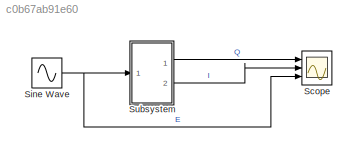
MODEL slx_c0b67ab91e60
KIND model
CONFIG AbsTol = auto
CONFIG EnableMultiTasking = off
CONFIG FixedStep = auto
CONFIG MaxStep = auto
CONFIG MinStep = auto
CONFIG RelTol = 1e-3
CONFIG SampleTimeConstraint = Unconstrained
CONFIG SolverName = VariableStepAuto
CONFIG StartTime = 0.0
CONFIG StopTime = 5
BLOCK [Scope] Scope
  Floating = off
  NumInputPorts = 3
  Ports = [3]
  ScopeSpecificationString = Simulink.scopes.TimeScopeBlockCfg('CurrentConfiguration', extmgr.ConfigurationSet(extmgr.Configuration('Core','General UI',true),extmgr.Configuration('Core','Source UI',true),extmgr.Configuration('Sources','WiredSimulink',true),extmgr.Configuration('Visuals','Time Domain',true,'SerializedDisplays',{struct('MinYLimReal','-0.000012','MaxYLimReal','0.000012','YLabelReal','','MinYLimMag','0.000000','M...<+2692ch>
BLOCK [Sin] Sine Wave
  Frequency = 5
  Ports = [0, 1]
  SampleTime = 0
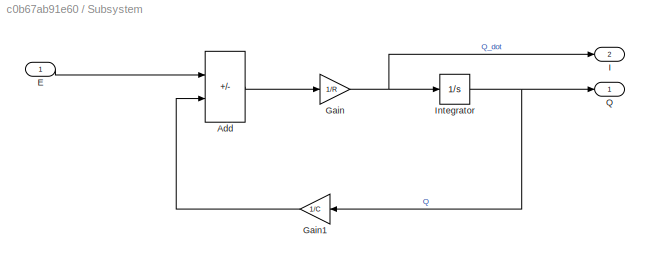
BLOCK [SubSystem] Subsystem
  Ports = [1, 2]
  RequestExecContextInheritance = off
BLOCK [Sum] Subsystem/Add
  IconShape = rectangular
  Inputs = +-
  Ports = [2, 1]
BLOCK [Inport] Subsystem/E
BLOCK [Gain] Subsystem/Gain
  Gain = 1/R
BLOCK [Gain] Subsystem/Gain1
  Gain = 1/C
BLOCK [Outport] Subsystem/I
  Port = 2
BLOCK [Integrator] Subsystem/Integrator
  Ports = [1, 1]
BLOCK [Outport] Subsystem/Q
NET Sine Wave:1 -> Scope:3, Subsystem:1
LINE Subsystem/Add:1 -> Subsystem/Gain:1
LINE Subsystem/E:1 -> Subsystem/Add:1
LINE Subsystem/Gain1:1 -> Subsystem/Add:2
NET Subsystem/Gain:1 -> Subsystem/I:1, Subsystem/Integrator:1
NET Subsystem/Integrator:1 -> Subsystem/Gain1:1, Subsystem/Q:1
LINE Subsystem:1 -> Scope:1
LINE Subsystem:2 -> Scope:2
note: NET lines group one-source signal fan-out (src -> all destinations, sorted); 1:1 wires keep LINE
